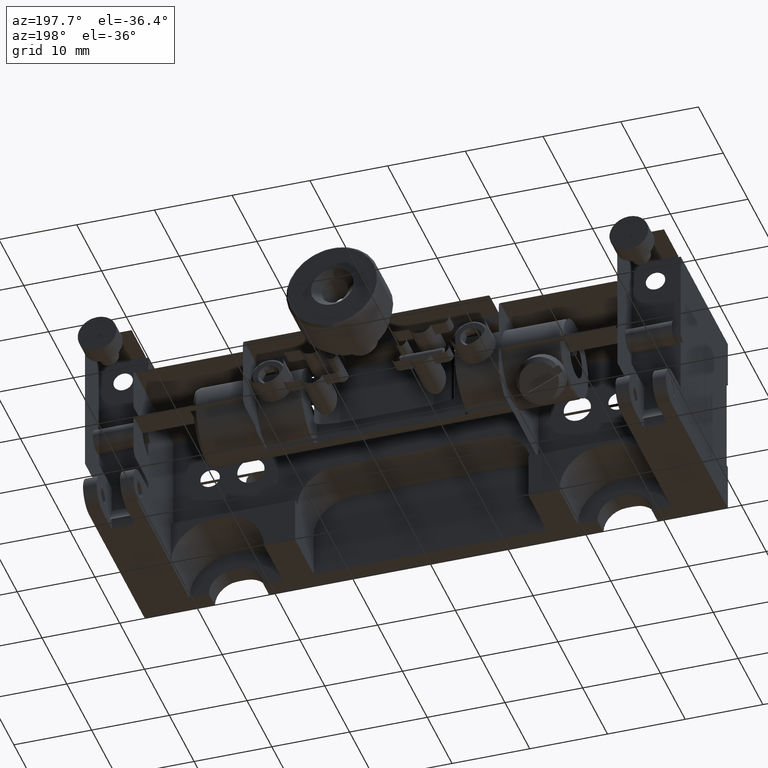
[diagram: clean part render]
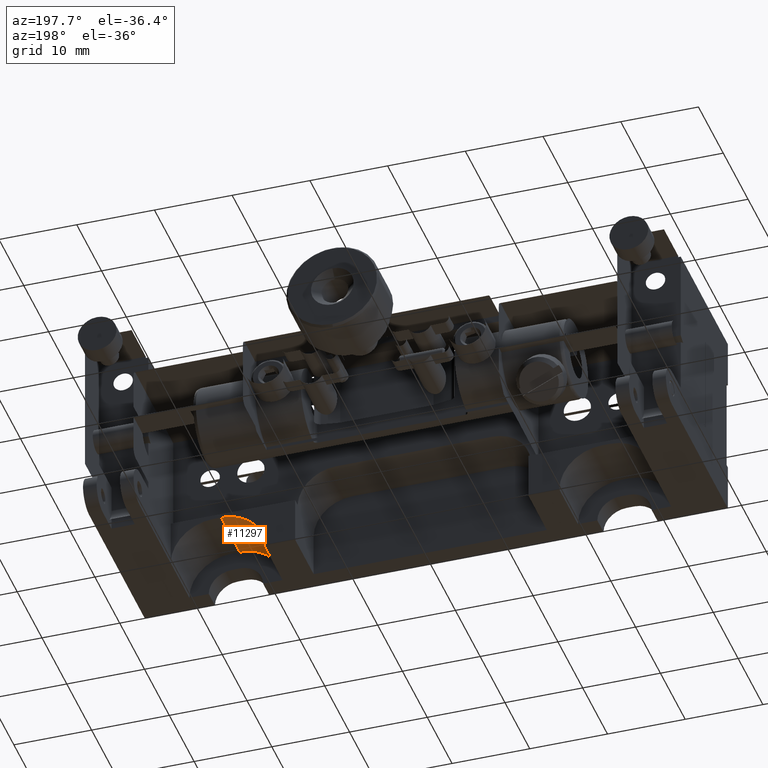
[diagram: same view with one face highlighted and labeled with its STEP entity id]
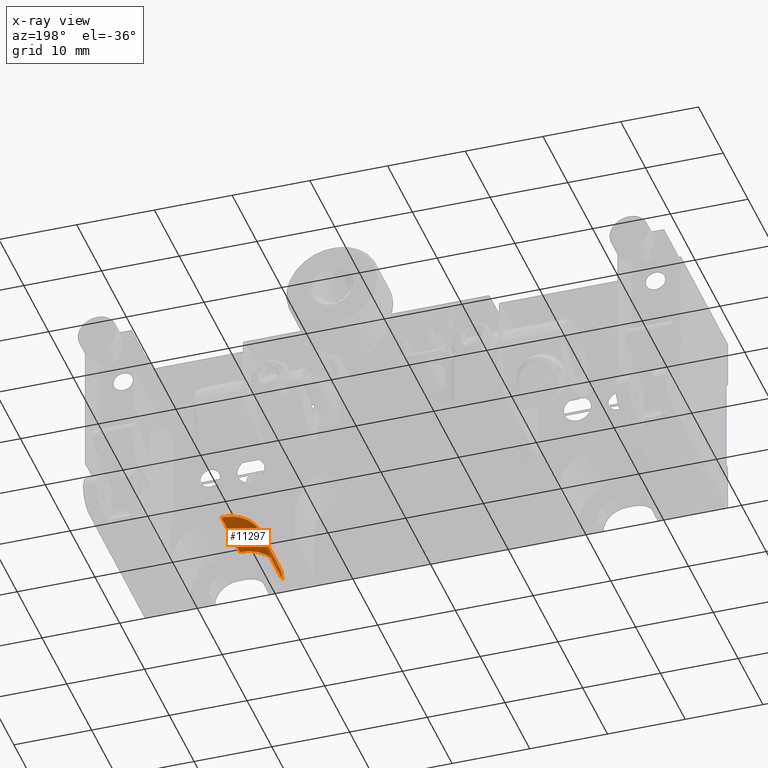
[diagram: x-ray of the same camera — body ghosted, the highlighted face saturated]
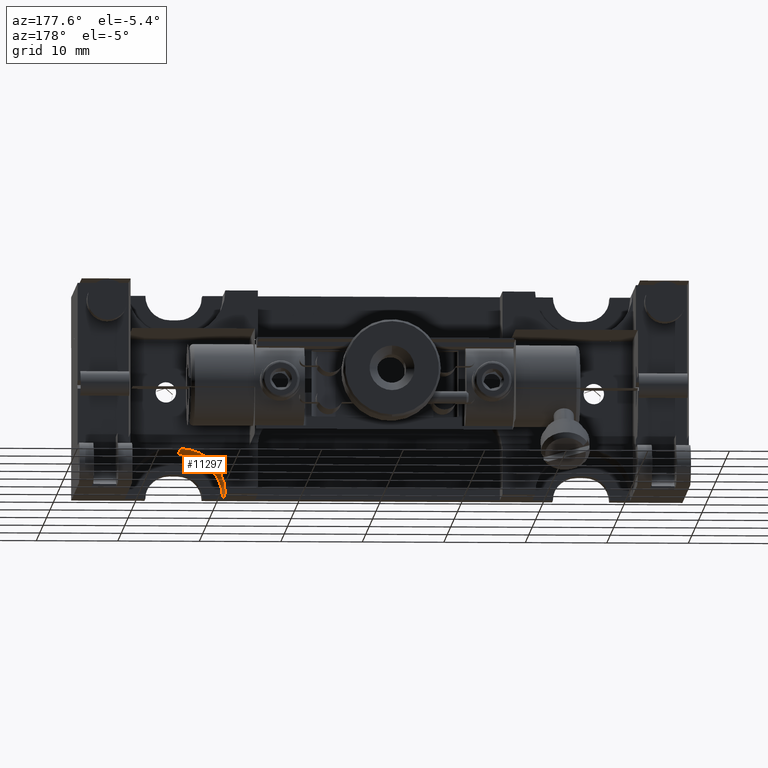
[diagram: same view with one face highlighted and labeled with its STEP entity id]
A machine part, auxiliary view. The second image highlights one B-rep face of the part: STEP entity #11297.
The next image is the same camera in x-ray: the body ghosted, the highlighted face saturated — about 0% of this face is hidden behind the body in this view.
A second angle (auxiliary view) of the same face is appended — the face is thin or edge-on in the first view.
In plain terms, the highlighted cylindrical surface (partial cylindrical patch) has radius 5.5 mm, axis along (0, 1, 0).
Its self-contained STEP definition (entity closure, byte-faithful):
#161 = EDGE_CURVE ( 'NONE', #1384, #4255, #11632, .T. ) ;
#1384 = VERTEX_POINT ( 'NONE', #3915 ) ;
#1860 = AXIS2_PLACEMENT_3D ( 'NONE', #6741, #5092, #3834 ) ;
#1980 = EDGE_CURVE ( 'NONE', #14456, #18987, #13417, .T. ) ;
#2716 = AXIS2_PLACEMENT_3D ( 'NONE', #9732, #20464, #6113 ) ;
#2783 = CYLINDRICAL_SURFACE ( 'NONE', #10303, 5.500000000000005329 ) ;
#3225 = ORIENTED_EDGE ( 'NONE', *, *, #1980, .F. ) ;
#3640 = CARTESIAN_POINT ( 'NONE',  ( 44.32634596628248858, 30.67343476192750629, 58.93264947075056881 ) ) ;
#3834 = DIRECTION ( 'NONE',  ( 0.000000000000000000, 0.000000000000000000, 1.000000000000000000 ) ) ;
#3915 = CARTESIAN_POINT ( 'NONE',  ( 44.32634596628248858, 38.17343476192750984, 58.93264947075056881 ) ) ;
#4255 = VERTEX_POINT ( 'NONE', #12168 ) ;
#4394 = VECTOR ( 'NONE', #18817, 1000.000000000000000 ) ;
#5092 = DIRECTION ( 'NONE',  ( 0.000000000000000000, 1.000000000000000000, 0.000000000000000000 ) ) ;
#5403 = DIRECTION ( 'NONE',  ( 0.000000000000000000, 1.000000000000000000, 0.000000000000000000 ) ) ;
#6113 = DIRECTION ( 'NONE',  ( 0.000000000000000000, 0.000000000000000000, 1.000000000000000000 ) ) ;
#6741 = CARTESIAN_POINT ( 'NONE',  ( 44.32634596628248858, 30.67343476192750629, 53.43264947075056170 ) ) ;
#7509 = ORIENTED_EDGE ( 'NONE', *, *, #13278, .T. ) ;
#7525 = CARTESIAN_POINT ( 'NONE',  ( 44.32634596628248858, 30.67343476192750629, 58.93264947075056881 ) ) ;
#7539 = DIRECTION ( 'NONE',  ( 0.000000000000000000, 1.000000000000000000, 0.000000000000000000 ) ) ;
#9091 = CARTESIAN_POINT ( 'NONE',  ( 44.32634596628248858, 30.67343476192750629, 53.43264947075056170 ) ) ;
#9294 = LINE ( 'NONE', #14061, #4394 ) ;
#9732 = CARTESIAN_POINT ( 'NONE',  ( 44.32634596628248858, 38.17343476192750984, 53.43264947075056170 ) ) ;
#10265 = VECTOR ( 'NONE', #5403, 1000.000000000000000 ) ;
#10303 = AXIS2_PLACEMENT_3D ( 'NONE', #9091, #7539, #10732 ) ;
#10732 = DIRECTION ( 'NONE',  ( 0.000000000000000000, 0.000000000000000000, 1.000000000000000000 ) ) ;
#11150 = ORIENTED_EDGE ( 'NONE', *, *, #161, .F. ) ;
#11297 = ADVANCED_FACE ( 'NONE', ( #18502 ), #2783, .F. ) ;
#11448 = CARTESIAN_POINT ( 'NONE',  ( 38.82634596628248147, 30.67343476192750629, 53.43264947075055460 ) ) ;
#11632 = CIRCLE ( 'NONE', #2716, 5.500000000000005329 ) ;
#12168 = CARTESIAN_POINT ( 'NONE',  ( 38.82634596628248147, 38.17343476192750984, 53.43264947075055460 ) ) ;
#13278 = EDGE_CURVE ( 'NONE', #14456, #4255, #9294, .T. ) ;
#13354 = LINE ( 'NONE', #3640, #10265 ) ;
#13417 = CIRCLE ( 'NONE', #1860, 5.500000000000005329 ) ;
#13974 = EDGE_CURVE ( 'NONE', #18987, #1384, #13354, .T. ) ;
#14061 = CARTESIAN_POINT ( 'NONE',  ( 38.82634596628248147, 38.17343476192750984, 53.43264947075055460 ) ) ;
#14456 = VERTEX_POINT ( 'NONE', #11448 ) ;
#15081 = EDGE_LOOP ( 'NONE', ( #19983, #3225, #7509, #11150 ) ) ;
#18502 = FACE_OUTER_BOUND ( 'NONE', #15081, .T. ) ;
#18817 = DIRECTION ( 'NONE',  ( -0.000000000000000000, 1.000000000000000000, 0.000000000000000000 ) ) ;
#18987 = VERTEX_POINT ( 'NONE', #7525 ) ;
#19983 = ORIENTED_EDGE ( 'NONE', *, *, #13974, .F. ) ;
#20464 = DIRECTION ( 'NONE',  ( -0.000000000000000000, -1.000000000000000000, -0.000000000000000000 ) ) ;